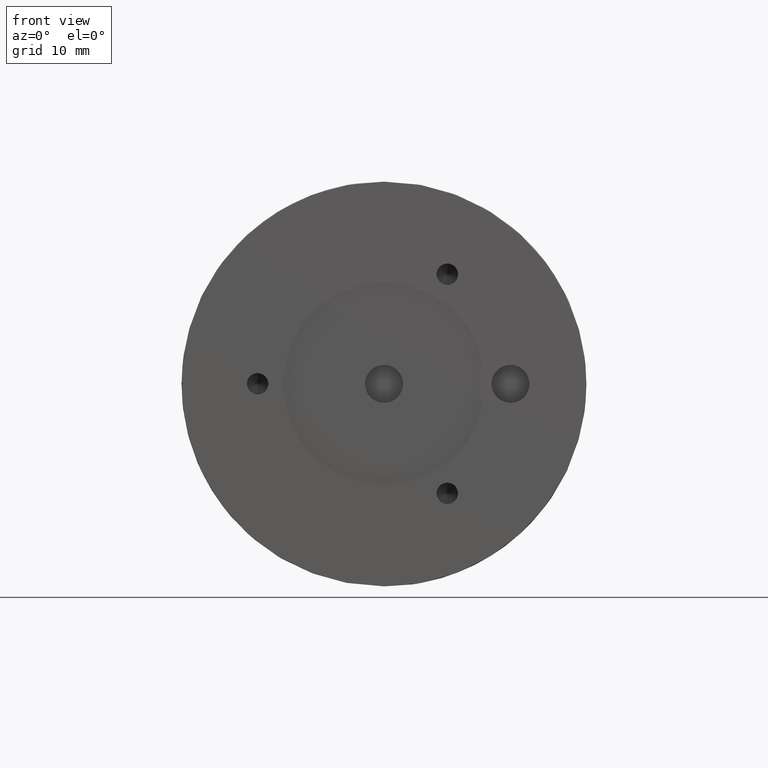
[diagram: clean part render]
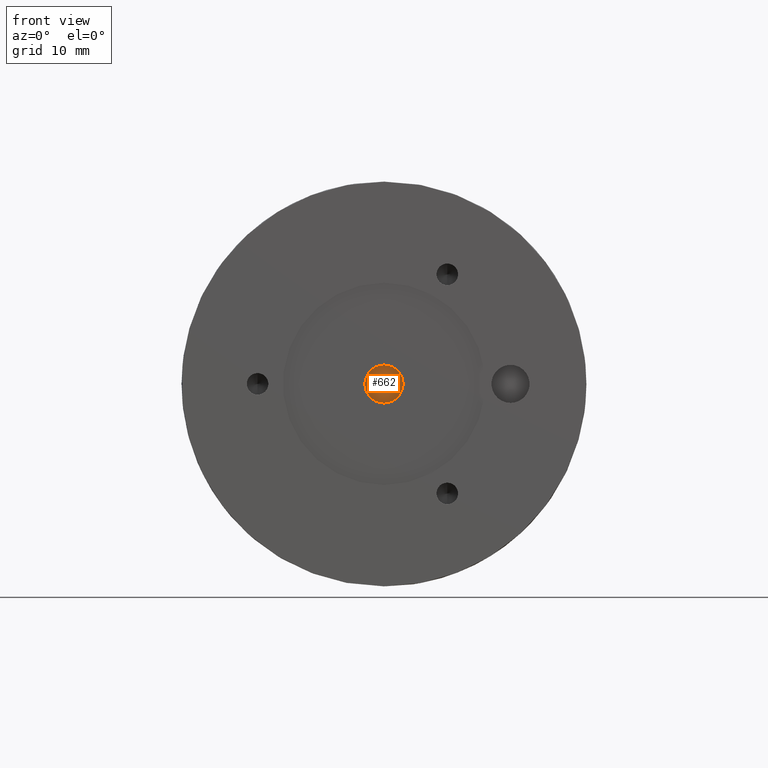
[diagram: same view with one face highlighted and labeled with its STEP entity id]
A machine part, front view. The second image highlights one B-rep face of the part: STEP entity #662.
In plain terms, the highlighted planar face has unit normal (0, 1, 0).
Its self-contained STEP definition (entity closure, byte-faithful):
#11 = DIRECTION ( 'NONE',  ( 0.0000000000000000000, 1.000000000000000000, 0.0000000000000000000 ) ) ;
#97 = VERTEX_POINT ( 'NONE', #628 ) ;
#184 = FACE_OUTER_BOUND ( 'NONE', #883, .T. ) ;
#238 = EDGE_CURVE ( 'NONE', #97, #691, #654, .T. ) ;
#270 = EDGE_CURVE ( 'NONE', #691, #97, #293, .T. ) ;
#292 = AXIS2_PLACEMENT_3D ( 'NONE', #849, #448, #442 ) ;
#293 = CIRCLE ( 'NONE', #347, 2.387499999999999289 ) ;
#301 = CARTESIAN_POINT ( 'NONE',  ( -1.058094834463310631E-15, 4.319999999999995843, 0.0000000000000000000 ) ) ;
#338 = DIRECTION ( 'NONE',  ( -0.0000000000000000000, -1.000000000000000000, -0.0000000000000000000 ) ) ;
#347 = AXIS2_PLACEMENT_3D ( 'NONE', #653, #338, #531 ) ;
#442 = DIRECTION ( 'NONE',  ( 0.0000000000000000000, 0.0000000000000000000, -1.000000000000000000 ) ) ;
#448 = DIRECTION ( 'NONE',  ( -0.0000000000000000000, -1.000000000000000000, -0.0000000000000000000 ) ) ;
#501 = PLANE ( 'NONE',  #753 ) ;
#507 = DIRECTION ( 'NONE',  ( 0.0000000000000000000, -0.0000000000000000000, 1.000000000000000000 ) ) ;
#531 = DIRECTION ( 'NONE',  ( 0.0000000000000000000, 0.0000000000000000000, -1.000000000000000000 ) ) ;
#546 = ORIENTED_EDGE ( 'NONE', *, *, #270, .T. ) ;
#623 = CARTESIAN_POINT ( 'NONE',  ( 0.0000000000000000000, 4.320000000000000284, -2.387499999999999289 ) ) ;
#628 = CARTESIAN_POINT ( 'NONE',  ( 2.923844232964305409E-16, 4.320000000000000284, 2.387499999999999289 ) ) ;
#653 = CARTESIAN_POINT ( 'NONE',  ( 0.0000000000000000000, 4.320000000000000284, 0.0000000000000000000 ) ) ;
#654 = CIRCLE ( 'NONE', #292, 2.387499999999999289 ) ;
#662 = ADVANCED_FACE ( 'NONE', ( #184 ), #501, .F. ) ;
#691 = VERTEX_POINT ( 'NONE', #623 ) ;
#753 = AXIS2_PLACEMENT_3D ( 'NONE', #301, #11, #507 ) ;
#830 = ORIENTED_EDGE ( 'NONE', *, *, #238, .T. ) ;
#849 = CARTESIAN_POINT ( 'NONE',  ( 0.0000000000000000000, 4.320000000000000284, 0.0000000000000000000 ) ) ;
#883 = EDGE_LOOP ( 'NONE', ( #546, #830 ) ) ;